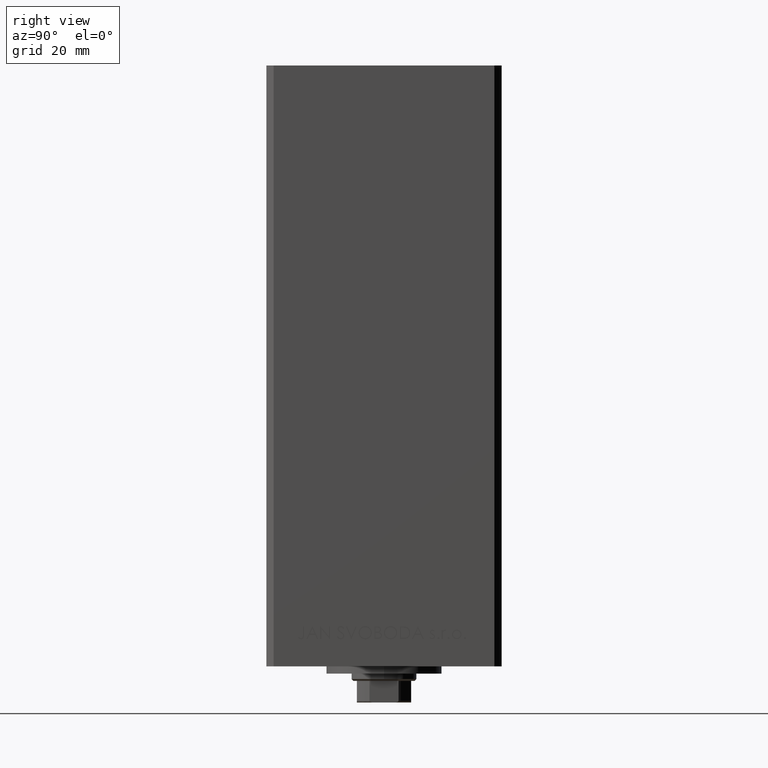
[diagram: clean part render]
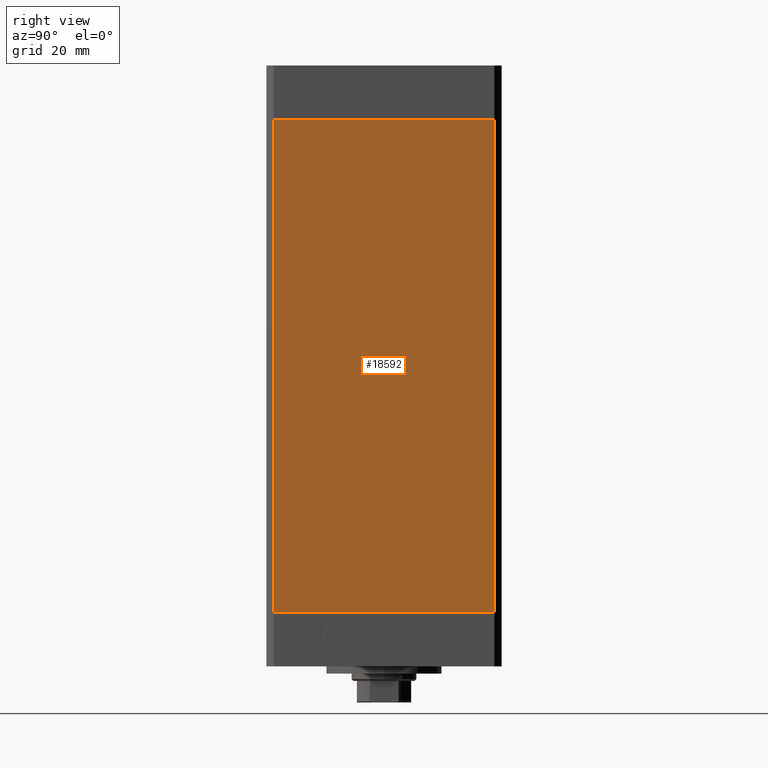
[diagram: same view with one face highlighted and labeled with its STEP entity id]
A machine part, right view. The second image highlights one B-rep face of the part: STEP entity #18592.
In plain terms, the highlighted planar face has unit normal (1, -0, 0).
Its self-contained STEP definition (entity closure, byte-faithful):
#2186 = CARTESIAN_POINT ( 'NONE',  ( 37.50000000000000711, 30.50000000000000000, 0.000000000000000000 ) ) ;
#2339 = ORIENTED_EDGE ( 'NONE', *, *, #20380, .F. ) ;
#2687 = VERTEX_POINT ( 'NONE', #20223 ) ;
#3617 = VECTOR ( 'NONE', #11665, 1000.000000000000000 ) ;
#4347 = ORIENTED_EDGE ( 'NONE', *, *, #18529, .T. ) ;
#4852 = LINE ( 'NONE', #30351, #33908 ) ;
#7077 = DIRECTION ( 'NONE',  ( 2.275047181608927644E-16, 1.000000000000000000, 0.000000000000000000 ) ) ;
#7328 = FACE_OUTER_BOUND ( 'NONE', #44493, .T. ) ;
#8106 = EDGE_CURVE ( 'NONE', #2687, #23133, #26510, .T. ) ;
#11035 = CARTESIAN_POINT ( 'NONE',  ( 37.50000000000000711, 30.50000000000000000, 136.0000000000000000 ) ) ;
#11665 = DIRECTION ( 'NONE',  ( -0.000000000000000000, -0.000000000000000000, -1.000000000000000000 ) ) ;
#13762 = DIRECTION ( 'NONE',  ( -2.275047181608927644E-16, -1.000000000000000000, 0.000000000000000000 ) ) ;
#18529 = EDGE_CURVE ( 'NONE', #40443, #2687, #39758, .T. ) ;
#18592 = ADVANCED_FACE ( 'NONE', ( #7328 ), #29349, .T. ) ;
#19383 = ORIENTED_EDGE ( 'NONE', *, *, #33743, .F. ) ;
#19583 = VECTOR ( 'NONE', #13762, 1000.000000000000000 ) ;
#20223 = CARTESIAN_POINT ( 'NONE',  ( 37.49999999999999289, -30.50000000000000000, 136.0000000000000000 ) ) ;
#20380 = EDGE_CURVE ( 'NONE', #25322, #23133, #4852, .T. ) ;
#21805 = CARTESIAN_POINT ( 'NONE',  ( 37.49999999999999289, -30.50000000000000000, 0.000000000000000000 ) ) ;
#23133 = VERTEX_POINT ( 'NONE', #21805 ) ;
#23779 = LINE ( 'NONE', #46550, #40508 ) ;
#25322 = VERTEX_POINT ( 'NONE', #2186 ) ;
#26510 = LINE ( 'NONE', #44843, #3617 ) ;
#28600 = ORIENTED_EDGE ( 'NONE', *, *, #8106, .T. ) ;
#29349 = PLANE ( 'NONE',  #48856 ) ;
#30351 = CARTESIAN_POINT ( 'NONE',  ( 37.50000000000000711, 30.50000000000000000, 0.000000000000000000 ) ) ;
#33743 = EDGE_CURVE ( 'NONE', #40443, #25322, #23779, .T. ) ;
#33908 = VECTOR ( 'NONE', #45450, 1000.000000000000000 ) ;
#35169 = DIRECTION ( 'NONE',  ( -0.000000000000000000, -0.000000000000000000, -1.000000000000000000 ) ) ;
#36165 = CARTESIAN_POINT ( 'NONE',  ( 37.50000000000000711, 30.50000000000000000, 136.0000000000000000 ) ) ;
#37267 = DIRECTION ( 'NONE',  ( 1.000000000000000000, -2.275047181608927644E-16, 0.000000000000000000 ) ) ;
#39276 = CARTESIAN_POINT ( 'NONE',  ( 37.50000000000000711, 30.50000000000000000, 136.0000000000000000 ) ) ;
#39758 = LINE ( 'NONE', #39276, #19583 ) ;
#40443 = VERTEX_POINT ( 'NONE', #36165 ) ;
#40508 = VECTOR ( 'NONE', #35169, 1000.000000000000000 ) ;
#44493 = EDGE_LOOP ( 'NONE', ( #2339, #19383, #4347, #28600 ) ) ;
#44843 = CARTESIAN_POINT ( 'NONE',  ( 37.49999999999999289, -30.50000000000000000, 136.0000000000000000 ) ) ;
#45450 = DIRECTION ( 'NONE',  ( -2.275047181608927644E-16, -1.000000000000000000, 0.000000000000000000 ) ) ;
#46550 = CARTESIAN_POINT ( 'NONE',  ( 37.50000000000000711, 30.50000000000000000, 136.0000000000000000 ) ) ;
#48856 = AXIS2_PLACEMENT_3D ( 'NONE', #11035, #37267, #7077 ) ;